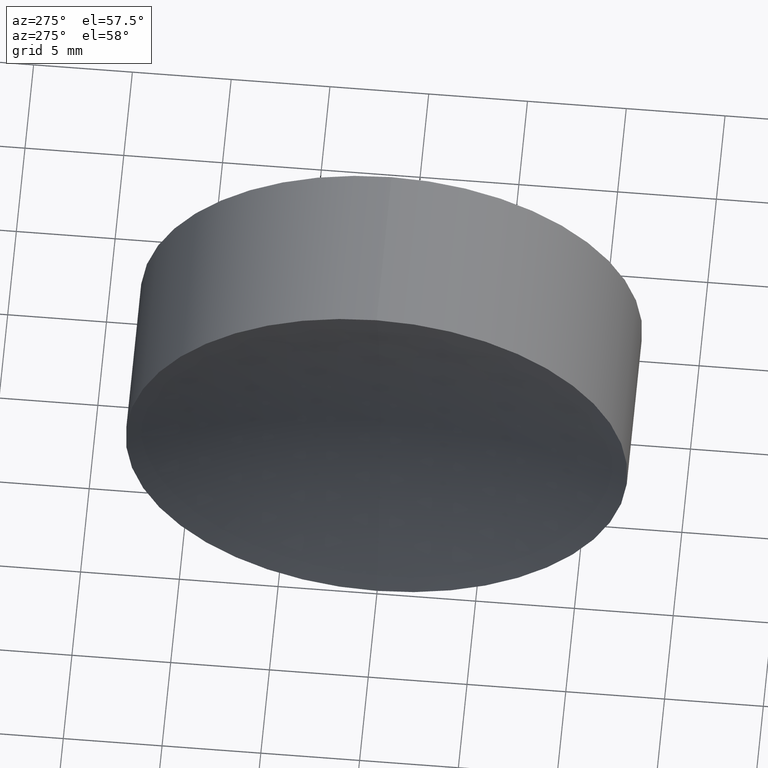
[diagram: clean part render]
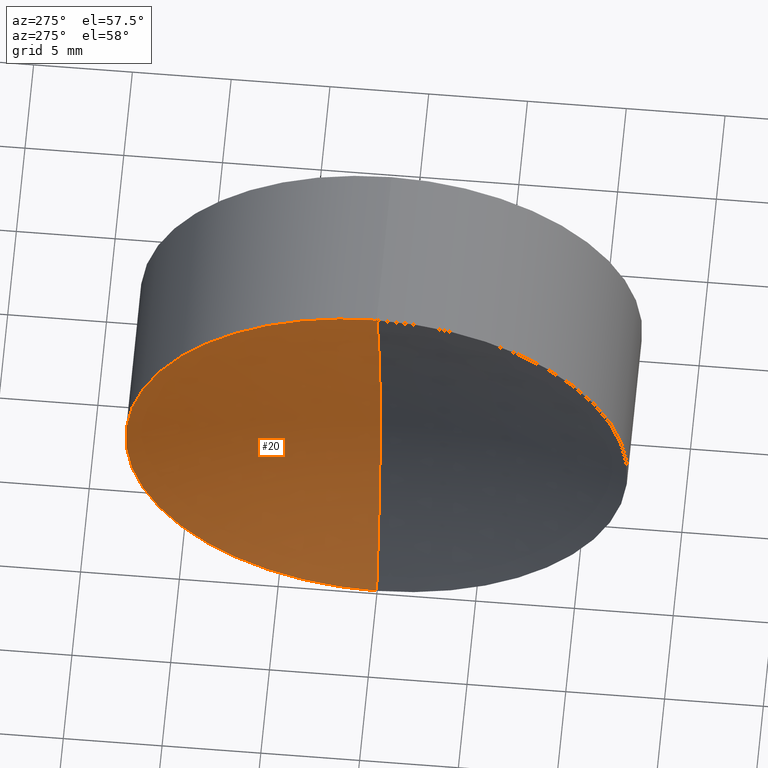
[diagram: same view with one face highlighted and labeled with its STEP entity id]
A machine part, auxiliary view. The second image highlights one B-rep face of the part: STEP entity #20.
In plain terms, the highlighted spherical surface has radius 39 mm.
Its self-contained STEP definition (entity closure, byte-faithful):
#4 = VERTEX_POINT ( 'NONE', #312 ) ;
#20 = ADVANCED_FACE ( 'NONE', ( #63 ), #75, .F. ) ;
#28 = AXIS2_PLACEMENT_3D ( 'NONE', #311, #154, #51 ) ;
#35 = DIRECTION ( 'NONE',  ( 2.249639673992786400E-032, 1.000000000000000000, 1.224646799147353200E-016 ) ) ;
#51 = DIRECTION ( 'NONE',  ( 0.0000000000000000000, 0.0000000000000000000, 1.000000000000000000 ) ) ;
#63 = FACE_OUTER_BOUND ( 'NONE', #78, .T. ) ;
#71 = DIRECTION ( 'NONE',  ( 0.0000000000000000000, 0.0000000000000000000, -1.000000000000000000 ) ) ;
#75 = SPHERICAL_SURFACE ( 'NONE', #28, 39.00000000000001400 ) ;
#78 = EDGE_LOOP ( 'NONE', ( #195, #126, #125 ) ) ;
#87 = AXIS2_PLACEMENT_3D ( 'NONE', #197, #35, #119 ) ;
#119 = DIRECTION ( 'NONE',  ( 0.0000000000000000000, -1.224646799147353200E-016, 1.000000000000000000 ) ) ;
#125 = ORIENTED_EDGE ( 'NONE', *, *, #206, .T. ) ;
#126 = ORIENTED_EDGE ( 'NONE', *, *, #232, .T. ) ;
#132 = AXIS2_PLACEMENT_3D ( 'NONE', #161, #221, #347 ) ;
#148 = AXIS2_PLACEMENT_3D ( 'NONE', #199, #163, #71 ) ;
#154 = DIRECTION ( 'NONE',  ( -0.0000000000000000000, 1.000000000000000000, 0.0000000000000000000 ) ) ;
#161 = CARTESIAN_POINT ( 'NONE',  ( 254.8214953252485500, 0.0000000000000000000, -4.695985748039317800E-014 ) ) ;
#163 = DIRECTION ( 'NONE',  ( 0.0000000000000000000, -1.000000000000000000, 0.0000000000000000000 ) ) ;
#167 = CARTESIAN_POINT ( 'NONE',  ( 254.8214953252485500, 0.0000000000000000000, 12.69999999999999900 ) ) ;
#168 = EDGE_CURVE ( 'NONE', #341, #4, #313, .T. ) ;
#173 = VERTEX_POINT ( 'NONE', #167 ) ;
#195 = ORIENTED_EDGE ( 'NONE', *, *, #168, .F. ) ;
#197 = CARTESIAN_POINT ( 'NONE',  ( 217.9472495702503900, 0.0000000000000000000, -7.774854966861718100E-022 ) ) ;
#199 = CARTESIAN_POINT ( 'NONE',  ( 217.9472495702503900, 0.0000000000000000000, -7.774854966861718100E-022 ) ) ;
#206 = EDGE_CURVE ( 'NONE', #173, #4, #275, .T. ) ;
#220 = CARTESIAN_POINT ( 'NONE',  ( 256.9472495702503900, 0.0000000000000000000, -4.776123294160174900E-015 ) ) ;
#221 = DIRECTION ( 'NONE',  ( -1.000000000000000000, -0.0000000000000000000, 1.836970198721029700E-016 ) ) ;
#232 = EDGE_CURVE ( 'NONE', #341, #173, #344, .T. ) ;
#275 = CIRCLE ( 'NONE', #132, 12.70000000000004500 ) ;
#311 = CARTESIAN_POINT ( 'NONE',  ( 217.9472495702503900, 0.0000000000000000000, -7.774854966861718100E-022 ) ) ;
#312 = CARTESIAN_POINT ( 'NONE',  ( 254.8214953252485500, 1.555301434917144200E-015, -12.70000000000005100 ) ) ;
#313 = CIRCLE ( 'NONE', #87, 39.00000000000001400 ) ;
#341 = VERTEX_POINT ( 'NONE', #220 ) ;
#344 = CIRCLE ( 'NONE', #148, 39.00000000000001400 ) ;
#347 = DIRECTION ( 'NONE',  ( 0.0000000000000000000, 0.0000000000000000000, 1.000000000000000000 ) ) ;